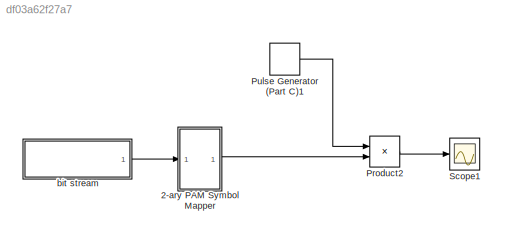
MODEL slx_df03a62f27a7
KIND model
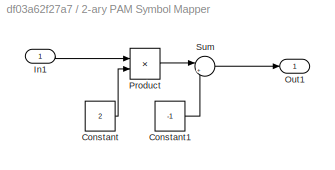
BLOCK [SubSystem] 2-ary PAM Symbol Mapper
  Ports = [1, 1]
  RequestExecContextInheritance = off
BLOCK [Constant] 2-ary PAM Symbol Mapper/Constant
  SampleTime = 1/1000
  Value = 2
BLOCK [Constant] 2-ary PAM Symbol Mapper/Constant1
  SampleTime = 1/1000
  Value = -1
BLOCK [Inport] 2-ary PAM Symbol Mapper/In1
  IconDisplay = Port number
BLOCK [Outport] 2-ary PAM Symbol Mapper/Out1
  IconDisplay = Port number
BLOCK [Product] 2-ary PAM Symbol Mapper/Product
  InputSameDT = off
  OutDataTypeStr = Inherit: Inherit via internal rule
  Ports = [2, 1]
  RndMeth = Floor
  SaturateOnIntegerOverflow = off
BLOCK [Sum] 2-ary PAM Symbol Mapper/Sum
  IconShape = round
  InputSameDT = off
  Inputs = |++
  OutDataTypeStr = Inherit: Inherit via internal rule
  Ports = [2, 1]
  SaturateOnIntegerOverflow = off
BLOCK [Product] Product2
  InputSameDT = off
  OutDataTypeStr = Inherit: Inherit via internal rule
  Ports = [2, 1]
  RndMeth = Floor
  SaturateOnIntegerOverflow = off
BLOCK [DiscretePulseGenerator] Pulse Generator (Part C)1
  Period = 50
  Ports = [0, 1]
  PulseWidth = 25
  SampleTime = 1/1000
BLOCK [Scope] Scope1
  Floating = off
  NumInputPorts = 1
  Ports = [1]
  SaveName = ScopeData1
  ShowLegends = off
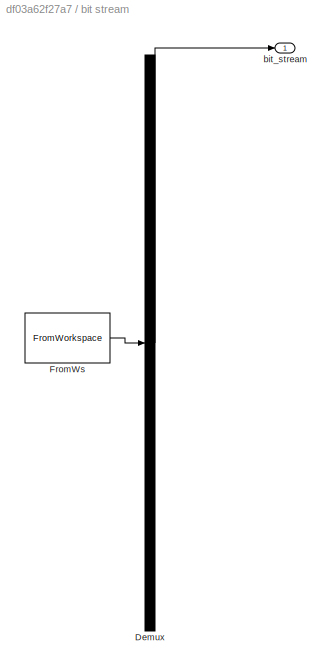
BLOCK [SubSystem] bit stream
  ClipboardFcn = sigbuilder_block('clipboard');
  CloseFcn = sigbuilder_block('close');
  ContinueFcn = sigbuilder_block('continue');
  CopyFcn = sigbuilder_block('copy');
  DeleteFcn = sigbuilder_block('delete');
  LoadFcn = sigbuilder_block('load');
  MaskHideContents = on
  ModelCloseFcn = sigbuilder_block('modelClose');
  NameChangeFcn = sigbuilder_block('namechange');
  OpenFcn = sigbuilder_block('open',[0 0 1440 754 ]);
  PauseFcn = sigbuilder_block('pause');
  Ports = [0, 1]
  PreSaveFcn = sigbuilder_block('preSave');
  RequestExecContextInheritance = off
  StartFcn = sigbuilder_block('start');
  StopFcn = sigbuilder_block('stop');
  Tag = STV Subsys
BLOCK [Demux] bit stream/Demux
  Outputs = 1
  Ports = [1, 1]
  Tag = STV Demux
BLOCK [FromWorkspace] bit stream/FromWs
  SampleTime = 1/1000
  Tag = STV FromWs
  VariableName = tuvar
  ZeroCross = on
BLOCK [Outport] bit stream/bit_stream
  IconDisplay = Port number
  Tag = STV Outport
LINE 2-ary PAM Symbol Mapper/Constant1:1 -> 2-ary PAM Symbol Mapper/Sum:2
LINE 2-ary PAM Symbol Mapper/Constant:1 -> 2-ary PAM Symbol Mapper/Product:2
LINE 2-ary PAM Symbol Mapper/In1:1 -> 2-ary PAM Symbol Mapper/Product:1
LINE 2-ary PAM Symbol Mapper/Product:1 -> 2-ary PAM Symbol Mapper/Sum:1
LINE 2-ary PAM Symbol Mapper/Sum:1 -> 2-ary PAM Symbol Mapper/Out1:1
LINE 2-ary PAM Symbol Mapper:1 -> Product2:2
LINE Product2:1 -> Scope1:1
LINE Pulse Generator (Part C)1:1 -> Product2:1
LINE bit stream:1 -> 2-ary PAM Symbol Mapper:1
